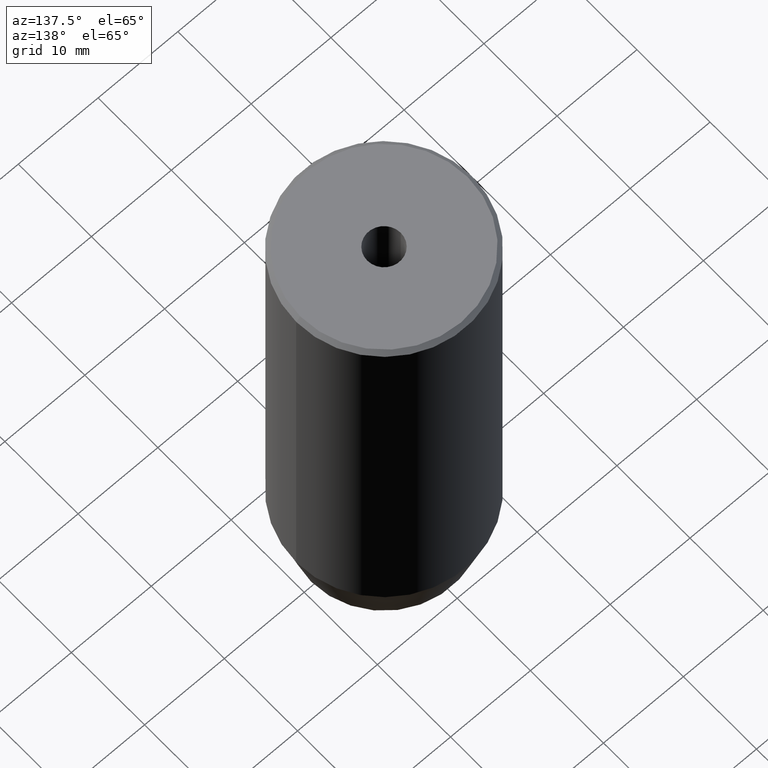
[diagram: clean part render]
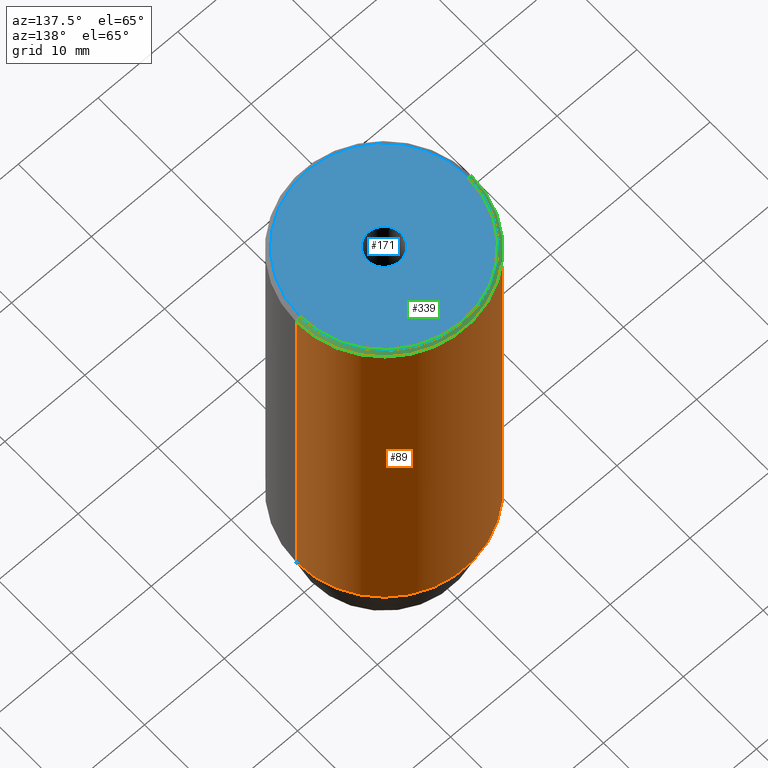
[diagram: same view with three faces highlighted in distinct colors, each labeled with its STEP entity id]
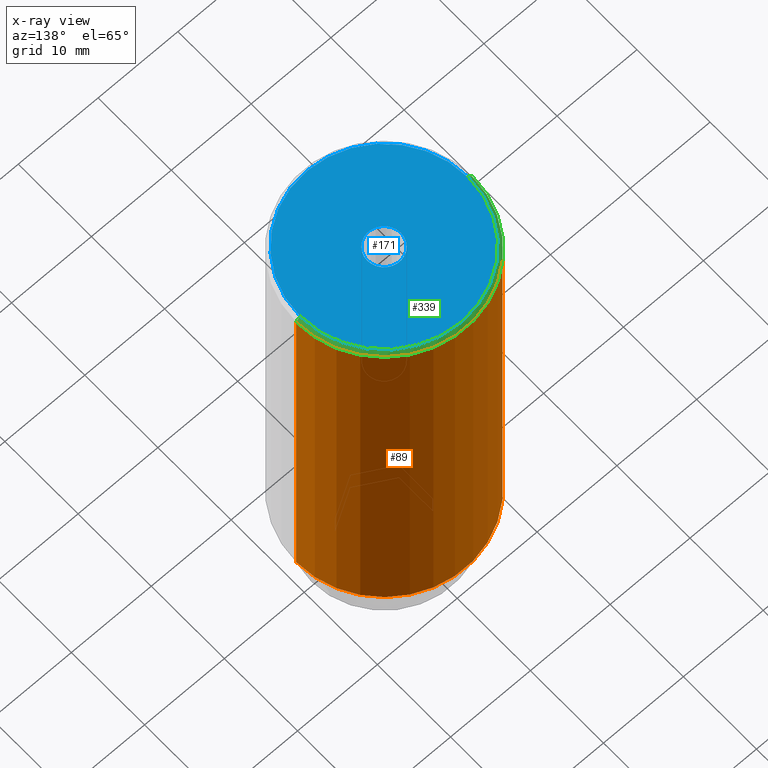
[diagram: x-ray of the same camera — body ghosted, the three highlighted faces saturated]
A machine part, auxiliary view with three faces highlighted in distinct colors.
The next image is the same camera in x-ray (body ghosted, the three faces saturated) — at least one of them is partly hidden behind the body in this view.
Their STEP definitions:

[orange] entity #89 — the highlighted cylindrical surface (partial cylindrical patch) has radius 11 mm, axis along (-0, -0, 1).
#11 = CIRCLE ( 'NONE', #417, 11.00000000000000000 ) ;
#14 = EDGE_LOOP ( 'NONE', ( #487, #179, #497, #159 ) ) ;
#50 = DIRECTION ( 'NONE',  ( -0.000000000000000000, -0.000000000000000000, 1.000000000000000000 ) ) ;
#74 = DIRECTION ( 'NONE',  ( 1.000000000000000000, 0.000000000000000000, 0.000000000000000000 ) ) ;
#83 = VERTEX_POINT ( 'NONE', #258 ) ;
#87 = AXIS2_PLACEMENT_3D ( 'NONE', #215, #365, #74 ) ;
#89 = ADVANCED_FACE ( 'NONE', ( #331 ), #106, .T. ) ;
#94 = CARTESIAN_POINT ( 'NONE',  ( 0.000000000000000000, 0.000000000000000000, -0.4999999999999935052 ) ) ;
#98 = DIRECTION ( 'NONE',  ( 1.000000000000000000, 0.000000000000000000, 0.000000000000000000 ) ) ;
#106 = CYLINDRICAL_SURFACE ( 'NONE', #513, 11.00000000000000000 ) ;
#121 = EDGE_CURVE ( 'NONE', #362, #83, #11, .T. ) ;
#131 = CARTESIAN_POINT ( 'NONE',  ( 11.00000000000000000, 0.000000000000000000, -53.00000000000000000 ) ) ;
#135 = CARTESIAN_POINT ( 'NONE',  ( -11.00000000000000000, 1.347111479062088405E-15, -0.4999999999999935052 ) ) ;
#159 = ORIENTED_EDGE ( 'NONE', *, *, #298, .F. ) ;
#179 = ORIENTED_EDGE ( 'NONE', *, *, #310, .T. ) ;
#215 = CARTESIAN_POINT ( 'NONE',  ( 0.000000000000000000, 0.000000000000000000, -53.00000000000000000 ) ) ;
#218 = CARTESIAN_POINT ( 'NONE',  ( -11.00000000000000000, 1.347111479062088405E-15, 0.000000000000000000 ) ) ;
#233 = VERTEX_POINT ( 'NONE', #131 ) ;
#258 = CARTESIAN_POINT ( 'NONE',  ( 11.00000000000000000, 0.000000000000000000, -0.4999999999999935052 ) ) ;
#298 = EDGE_CURVE ( 'NONE', #233, #83, #309, .T. ) ;
#305 = EDGE_CURVE ( 'NONE', #233, #414, #349, .T. ) ;
#309 = LINE ( 'NONE', #482, #368 ) ;
#310 = EDGE_CURVE ( 'NONE', #414, #362, #532, .T. ) ;
#324 = VECTOR ( 'NONE', #403, 1000.000000000000000 ) ;
#331 = FACE_OUTER_BOUND ( 'NONE', #14, .T. ) ;
#337 = CARTESIAN_POINT ( 'NONE',  ( -11.00000000000000000, 1.347111479062088405E-15, -53.00000000000000000 ) ) ;
#349 = CIRCLE ( 'NONE', #87, 11.00000000000000000 ) ;
#362 = VERTEX_POINT ( 'NONE', #135 ) ;
#365 = DIRECTION ( 'NONE',  ( -0.000000000000000000, -0.000000000000000000, 1.000000000000000000 ) ) ;
#368 = VECTOR ( 'NONE', #496, 1000.000000000000000 ) ;
#403 = DIRECTION ( 'NONE',  ( -0.000000000000000000, -0.000000000000000000, 1.000000000000000000 ) ) ;
#414 = VERTEX_POINT ( 'NONE', #337 ) ;
#417 = AXIS2_PLACEMENT_3D ( 'NONE', #94, #456, #462 ) ;
#456 = DIRECTION ( 'NONE',  ( 0.000000000000000000, 0.000000000000000000, -1.000000000000000000 ) ) ;
#462 = DIRECTION ( 'NONE',  ( 1.000000000000000000, 0.000000000000000000, 0.000000000000000000 ) ) ;
#482 = CARTESIAN_POINT ( 'NONE',  ( 11.00000000000000000, 0.000000000000000000, 0.000000000000000000 ) ) ;
#487 = ORIENTED_EDGE ( 'NONE', *, *, #305, .T. ) ;
#496 = DIRECTION ( 'NONE',  ( -0.000000000000000000, -0.000000000000000000, 1.000000000000000000 ) ) ;
#497 = ORIENTED_EDGE ( 'NONE', *, *, #121, .T. ) ;
#504 = CARTESIAN_POINT ( 'NONE',  ( 0.000000000000000000, 0.000000000000000000, 0.000000000000000000 ) ) ;
#513 = AXIS2_PLACEMENT_3D ( 'NONE', #504, #50, #98 ) ;
#532 = LINE ( 'NONE', #218, #324 ) ;

[blue] entity #171 — the highlighted planar face has unit normal (0, -0, 1).
#16 = PLANE ( 'NONE',  #249 ) ;
#21 = CIRCLE ( 'NONE', #505, 2.099999999999998757 ) ;
#23 = VERTEX_POINT ( 'NONE', #275 ) ;
#55 = CARTESIAN_POINT ( 'NONE',  ( -10.50000000000000888, 0.000000000000000000, 0.000000000000000000 ) ) ;
#65 = FACE_OUTER_BOUND ( 'NONE', #372, .T. ) ;
#75 = CIRCLE ( 'NONE', #277, 10.50000000000000888 ) ;
#91 = VERTEX_POINT ( 'NONE', #55 ) ;
#111 = CARTESIAN_POINT ( 'NONE',  ( -2.099999999999998757, 2.571758278209440478E-16, -1.990051048614449116E-16 ) ) ;
#115 = DIRECTION ( 'NONE',  ( -0.000000000000000000, -0.000000000000000000, 1.000000000000000000 ) ) ;
#141 = ORIENTED_EDGE ( 'NONE', *, *, #145, .F. ) ;
#145 = EDGE_CURVE ( 'NONE', #404, #562, #552, .T. ) ;
#158 = DIRECTION ( 'NONE',  ( 1.000000000000000000, 0.000000000000000000, 0.000000000000000000 ) ) ;
#171 = ADVANCED_FACE ( 'NONE', ( #477, #65 ), #16, .T. ) ;
#205 = DIRECTION ( 'NONE',  ( 1.000000000000000000, 0.000000000000000000, 0.000000000000000000 ) ) ;
#208 = CARTESIAN_POINT ( 'NONE',  ( 0.000000000000000000, 0.000000000000000000, 0.000000000000000000 ) ) ;
#220 = DIRECTION ( 'NONE',  ( 1.000000000000000000, 0.000000000000000000, 0.000000000000000000 ) ) ;
#227 = DIRECTION ( 'NONE',  ( -0.000000000000000000, -0.000000000000000000, 1.000000000000000000 ) ) ;
#243 = ORIENTED_EDGE ( 'NONE', *, *, #247, .F. ) ;
#247 = EDGE_CURVE ( 'NONE', #562, #404, #21, .T. ) ;
#249 = AXIS2_PLACEMENT_3D ( 'NONE', #208, #385, #251 ) ;
#251 = DIRECTION ( 'NONE',  ( 1.000000000000000000, 0.000000000000000000, 0.000000000000000000 ) ) ;
#275 = CARTESIAN_POINT ( 'NONE',  ( 10.50000000000000888, 1.316495309083405209E-15, 0.000000000000000000 ) ) ;
#277 = AXIS2_PLACEMENT_3D ( 'NONE', #428, #558, #158 ) ;
#351 = ORIENTED_EDGE ( 'NONE', *, *, #565, .T. ) ;
#369 = AXIS2_PLACEMENT_3D ( 'NONE', #384, #115, #205 ) ;
#372 = EDGE_LOOP ( 'NONE', ( #351, #523 ) ) ;
#373 = CARTESIAN_POINT ( 'NONE',  ( 0.000000000000000000, 0.000000000000000000, -1.990051048614449116E-16 ) ) ;
#384 = CARTESIAN_POINT ( 'NONE',  ( 0.000000000000000000, 0.000000000000000000, 0.000000000000000000 ) ) ;
#385 = DIRECTION ( 'NONE',  ( 0.000000000000000000, -0.000000000000000000, 1.000000000000000000 ) ) ;
#404 = VERTEX_POINT ( 'NONE', #423 ) ;
#423 = CARTESIAN_POINT ( 'NONE',  ( 2.099999999999998757, 0.000000000000000000, -1.990051048614449116E-16 ) ) ;
#428 = CARTESIAN_POINT ( 'NONE',  ( 0.000000000000000000, 0.000000000000000000, 0.000000000000000000 ) ) ;
#438 = CARTESIAN_POINT ( 'NONE',  ( 0.000000000000000000, 0.000000000000000000, -1.990051048614449116E-16 ) ) ;
#446 = AXIS2_PLACEMENT_3D ( 'NONE', #373, #575, #453 ) ;
#448 = CIRCLE ( 'NONE', #369, 10.50000000000000888 ) ;
#453 = DIRECTION ( 'NONE',  ( 1.000000000000000000, 0.000000000000000000, 0.000000000000000000 ) ) ;
#477 = FACE_BOUND ( 'NONE', #571, .T. ) ;
#505 = AXIS2_PLACEMENT_3D ( 'NONE', #438, #227, #220 ) ;
#523 = ORIENTED_EDGE ( 'NONE', *, *, #561, .T. ) ;
#552 = CIRCLE ( 'NONE', #446, 2.099999999999998757 ) ;
#558 = DIRECTION ( 'NONE',  ( -0.000000000000000000, -0.000000000000000000, 1.000000000000000000 ) ) ;
#561 = EDGE_CURVE ( 'NONE', #23, #91, #448, .T. ) ;
#562 = VERTEX_POINT ( 'NONE', #111 ) ;
#565 = EDGE_CURVE ( 'NONE', #91, #23, #75, .T. ) ;
#571 = EDGE_LOOP ( 'NONE', ( #141, #243 ) ) ;
#575 = DIRECTION ( 'NONE',  ( -0.000000000000000000, -0.000000000000000000, 1.000000000000000000 ) ) ;

[green] entity #339 — the highlighted conical surface has half-angle 45 deg.
#11 = CIRCLE ( 'NONE', #417, 11.00000000000000000 ) ;
#23 = VERTEX_POINT ( 'NONE', #275 ) ;
#42 = DIRECTION ( 'NONE',  ( -0.7071067811865451302, 0.000000000000000000, -0.7071067811865500152 ) ) ;
#55 = CARTESIAN_POINT ( 'NONE',  ( -10.50000000000000888, 0.000000000000000000, 0.000000000000000000 ) ) ;
#82 = EDGE_LOOP ( 'NONE', ( #169, #175, #556, #306 ) ) ;
#83 = VERTEX_POINT ( 'NONE', #258 ) ;
#91 = VERTEX_POINT ( 'NONE', #55 ) ;
#94 = CARTESIAN_POINT ( 'NONE',  ( 0.000000000000000000, 0.000000000000000000, -0.4999999999999935052 ) ) ;
#108 = DIRECTION ( 'NONE',  ( 0.7071067811865451302, 8.659560562354904508E-17, -0.7071067811865500152 ) ) ;
#115 = DIRECTION ( 'NONE',  ( -0.000000000000000000, -0.000000000000000000, 1.000000000000000000 ) ) ;
#121 = EDGE_CURVE ( 'NONE', #362, #83, #11, .T. ) ;
#135 = CARTESIAN_POINT ( 'NONE',  ( -11.00000000000000000, 1.347111479062088405E-15, -0.4999999999999935052 ) ) ;
#138 = DIRECTION ( 'NONE',  ( -1.000000000000000000, 0.000000000000000000, 0.000000000000000000 ) ) ;
#154 = LINE ( 'NONE', #341, #161 ) ;
#161 = VECTOR ( 'NONE', #108, 1000.000000000000114 ) ;
#169 = ORIENTED_EDGE ( 'NONE', *, *, #561, .F. ) ;
#175 = ORIENTED_EDGE ( 'NONE', *, *, #189, .T. ) ;
#189 = EDGE_CURVE ( 'NONE', #23, #83, #154, .T. ) ;
#200 = CARTESIAN_POINT ( 'NONE',  ( -10.50000000000000888, 0.000000000000000000, 0.000000000000000000 ) ) ;
#203 = EDGE_CURVE ( 'NONE', #91, #362, #296, .T. ) ;
#205 = DIRECTION ( 'NONE',  ( 1.000000000000000000, 0.000000000000000000, 0.000000000000000000 ) ) ;
#241 = CONICAL_SURFACE ( 'NONE', #483, 10.50000000000000888, 0.7853981633974447263 ) ;
#258 = CARTESIAN_POINT ( 'NONE',  ( 11.00000000000000000, 0.000000000000000000, -0.4999999999999935052 ) ) ;
#275 = CARTESIAN_POINT ( 'NONE',  ( 10.50000000000000888, 1.316495309083405209E-15, 0.000000000000000000 ) ) ;
#296 = LINE ( 'NONE', #200, #358 ) ;
#306 = ORIENTED_EDGE ( 'NONE', *, *, #203, .F. ) ;
#339 = ADVANCED_FACE ( 'NONE', ( #363 ), #241, .T. ) ;
#341 = CARTESIAN_POINT ( 'NONE',  ( 10.50000000000000888, 1.285879139104722014E-15, 0.000000000000000000 ) ) ;
#358 = VECTOR ( 'NONE', #42, 1000.000000000000114 ) ;
#362 = VERTEX_POINT ( 'NONE', #135 ) ;
#363 = FACE_OUTER_BOUND ( 'NONE', #82, .T. ) ;
#369 = AXIS2_PLACEMENT_3D ( 'NONE', #384, #115, #205 ) ;
#384 = CARTESIAN_POINT ( 'NONE',  ( 0.000000000000000000, 0.000000000000000000, 0.000000000000000000 ) ) ;
#417 = AXIS2_PLACEMENT_3D ( 'NONE', #94, #456, #462 ) ;
#448 = CIRCLE ( 'NONE', #369, 10.50000000000000888 ) ;
#456 = DIRECTION ( 'NONE',  ( 0.000000000000000000, 0.000000000000000000, -1.000000000000000000 ) ) ;
#462 = DIRECTION ( 'NONE',  ( 1.000000000000000000, 0.000000000000000000, 0.000000000000000000 ) ) ;
#483 = AXIS2_PLACEMENT_3D ( 'NONE', #573, #535, #138 ) ;
#535 = DIRECTION ( 'NONE',  ( 0.000000000000000000, 0.000000000000000000, -1.000000000000000000 ) ) ;
#556 = ORIENTED_EDGE ( 'NONE', *, *, #121, .F. ) ;
#561 = EDGE_CURVE ( 'NONE', #23, #91, #448, .T. ) ;
#573 = CARTESIAN_POINT ( 'NONE',  ( 0.000000000000000000, 0.000000000000000000, 0.000000000000000000 ) ) ;